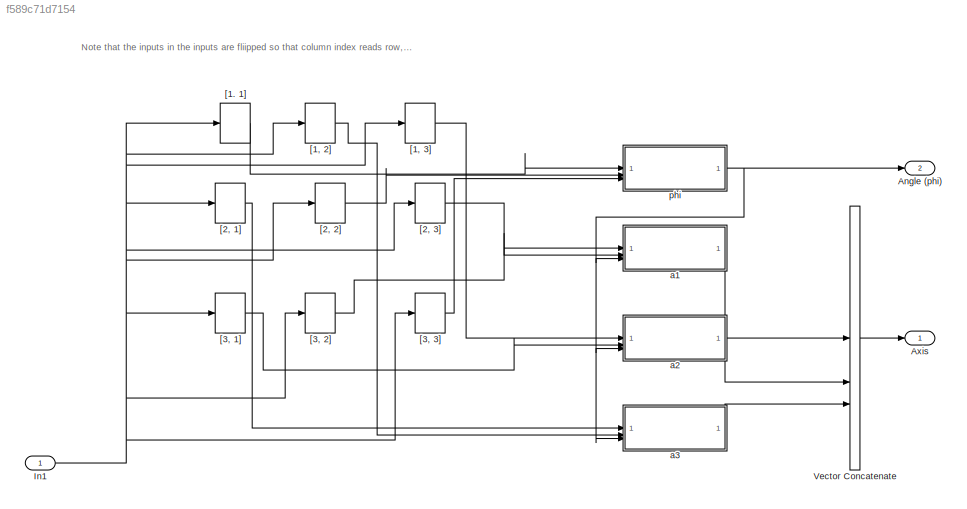
MODEL slx_f589c71d7154
KIND model
CONFIG AbsTol = auto
CONFIG EnableMultiTasking = off
CONFIG FixedStep = auto
CONFIG MaxStep = auto
CONFIG MinStep = auto
CONFIG RelTol = 1e-3
CONFIG SampleTimeConstraint = Unconstrained
CONFIG SolverName = VariableStepAuto
CONFIG StartTime = 0.0
CONFIG StopTime = 10.0
BLOCK [Outport] Angle (phi)
  Port = 2
BLOCK [Outport] Axis
BLOCK [Inport] In1
BLOCK [Concatenate] Vector Concatenate
  NumInputs = 3
BLOCK [Selector] [1, 2]
  IndexOptions = Index vector (dialog),Index vector (dialog)
  Indices = 2,1
  InputPortWidth = 3
  NumberOfDimensions = 2
  OutputSizes = 1,1
BLOCK [Selector] [1, 3]
  IndexOptions = Index vector (dialog),Index vector (dialog)
  Indices = 3,1
  InputPortWidth = 3
  NumberOfDimensions = 2
  OutputSizes = 1,1
BLOCK [Selector] [1. 1]
  IndexOptions = Index vector (dialog),Index vector (dialog)
  Indices = 1,1
  InputPortWidth = 3
  NumberOfDimensions = 2
  OutputSizes = 1,1
BLOCK [Selector] [2, 1]
  IndexOptions = Index vector (dialog),Index vector (dialog)
  Indices = 1,2
  InputPortWidth = 3
  NumberOfDimensions = 2
  OutputSizes = 1,1
BLOCK [Selector] [2, 2]
  IndexOptions = Index vector (dialog),Index vector (dialog)
  Indices = 2,2
  InputPortWidth = 3
  NumberOfDimensions = 2
  OutputSizes = 1,1
BLOCK [Selector] [2, 3]
  IndexOptions = Index vector (dialog),Index vector (dialog)
  Indices = 3,2
  InputPortWidth = 3
  NumberOfDimensions = 2
  OutputSizes = 1,1
BLOCK [Selector] [3, 1]
  IndexOptions = Index vector (dialog),Index vector (dialog)
  Indices = 1,3
  InputPortWidth = 3
  NumberOfDimensions = 2
  OutputSizes = 1,1
BLOCK [Selector] [3, 2]
  IndexOptions = Index vector (dialog),Index vector (dialog)
  Indices = 2,3
  InputPortWidth = 3
  NumberOfDimensions = 2
  OutputSizes = 1,1
BLOCK [Selector] [3, 3]
  IndexOptions = Index vector (dialog),Index vector (dialog)
  Indices = 3,3
  InputPortWidth = 3
  NumberOfDimensions = 2
  OutputSizes = 1,1
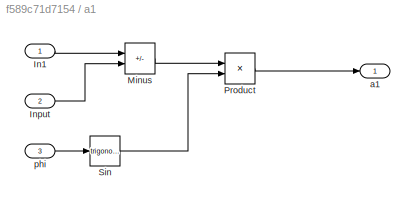
BLOCK [SubSystem] a1
BLOCK [Inport] a1/In1
BLOCK [Inport] a1/Input
  Port = 2
BLOCK [Sum] a1/Minus
  IconShape = rectangular
  Inputs = +-
BLOCK [Product] a1/Product
BLOCK [Trigonometry] a1/Sin
BLOCK [Outport] a1/a1
BLOCK [Inport] a1/phi
  Port = 3
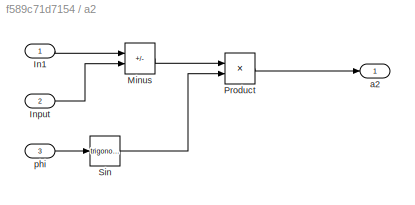
BLOCK [SubSystem] a2
BLOCK [Inport] a2/In1
BLOCK [Inport] a2/Input
  Port = 2
BLOCK [Sum] a2/Minus
  IconShape = rectangular
  Inputs = +-
BLOCK [Product] a2/Product
BLOCK [Trigonometry] a2/Sin
BLOCK [Outport] a2/a2
BLOCK [Inport] a2/phi
  Port = 3
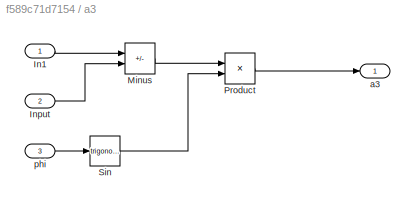
BLOCK [SubSystem] a3
BLOCK [Inport] a3/In1
BLOCK [Inport] a3/Input
  Port = 2
BLOCK [Sum] a3/Minus
  IconShape = rectangular
  Inputs = +-
BLOCK [Product] a3/Product
BLOCK [Trigonometry] a3/Sin
BLOCK [Outport] a3/a3
BLOCK [Inport] a3/phi
  Port = 3
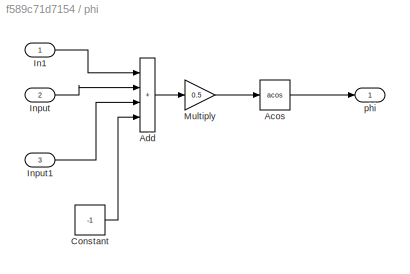
BLOCK [SubSystem] phi
BLOCK [Trigonometry] phi/Acos
  Operator = acos
BLOCK [Sum] phi/Add
  IconShape = rectangular
  Inputs = ++++
BLOCK [Constant] phi/Constant
  Value = -1
BLOCK [Inport] phi/In1
BLOCK [Inport] phi/Input
  Port = 2
BLOCK [Inport] phi/Input1
  Port = 3
BLOCK [Gain] phi/Multiply
  Gain = 0.5
BLOCK [Outport] phi/phi
ANNOTATION (root): Note that the inputs in the inputs are fliipped so that column index reads row, and row reads column.
NET In1:1 -> [1, 2]:1, [1, 3]:1, [1. 1]:1, [2, 1]:1, [2, 2]:1, [2, 3]:1, [3, 1]:1, [3, 2]:1, [3, 3]:1
LINE Vector Concatenate:1 -> Axis:1
LINE [1, 2]:1 -> a3:2
LINE [1, 3]:1 -> a2:1
LINE [1. 1]:1 -> phi:1
LINE [2, 1]:1 -> a3:1
LINE [2, 2]:1 -> phi:2
LINE [2, 3]:1 -> a1:2
LINE [3, 1]:1 -> a2:2
LINE [3, 2]:1 -> a1:1
LINE [3, 3]:1 -> phi:3
LINE a1/In1:1 -> a1/Minus:1
LINE a1/Input:1 -> a1/Minus:2
LINE a1/Minus:1 -> a1/Product:1
LINE a1/Product:1 -> a1/a1:1
LINE a1/Sin:1 -> a1/Product:2
LINE a1/phi:1 -> a1/Sin:1
LINE a1:1 -> Vector Concatenate:1
LINE a2/In1:1 -> a2/Minus:1
LINE a2/Input:1 -> a2/Minus:2
LINE a2/Minus:1 -> a2/Product:1
LINE a2/Product:1 -> a2/a2:1
LINE a2/Sin:1 -> a2/Product:2
LINE a2/phi:1 -> a2/Sin:1
LINE a2:1 -> Vector Concatenate:2
LINE a3/In1:1 -> a3/Minus:1
LINE a3/Input:1 -> a3/Minus:2
LINE a3/Minus:1 -> a3/Product:1
LINE a3/Product:1 -> a3/a3:1
LINE a3/Sin:1 -> a3/Product:2
LINE a3/phi:1 -> a3/Sin:1
LINE a3:1 -> Vector Concatenate:3
LINE phi/Acos:1 -> phi/phi:1
LINE phi/Add:1 -> phi/Multiply:1
LINE phi/Constant:1 -> phi/Add:4
LINE phi/In1:1 -> phi/Add:1
LINE phi/Input1:1 -> phi/Add:3
LINE phi/Input:1 -> phi/Add:2
LINE phi/Multiply:1 -> phi/Acos:1
NET phi:1 -> Angle (phi):1, a1:3, a2:3, a3:3
note: NET lines group one-source signal fan-out (src -> all destinations, sorted); 1:1 wires keep LINE
